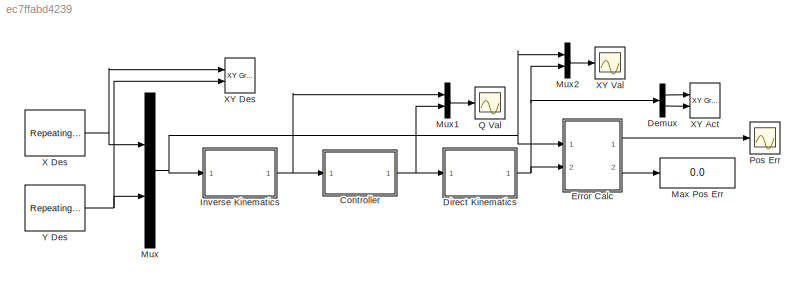
MODEL slx_ec7ffabd4239
KIND model
CONFIG AbsTol = auto
CONFIG EnableMultiTasking = on
CONFIG FixedStep = auto
CONFIG InitFcn = CONSTANTS\nDEFAULT\nModel
CONFIG MaxStep = auto
CONFIG MinStep = auto
CONFIG PreLoadFcn = CONSTANTS\nDEFAULT\nModel
CONFIG RelTol = 1e-3
CONFIG SampleTimeConstraint = Unconstrained
CONFIG Solver = ode45
CONFIG SolverName = ode45
CONFIG StartTime = 0.0
CONFIG StopTime = .5
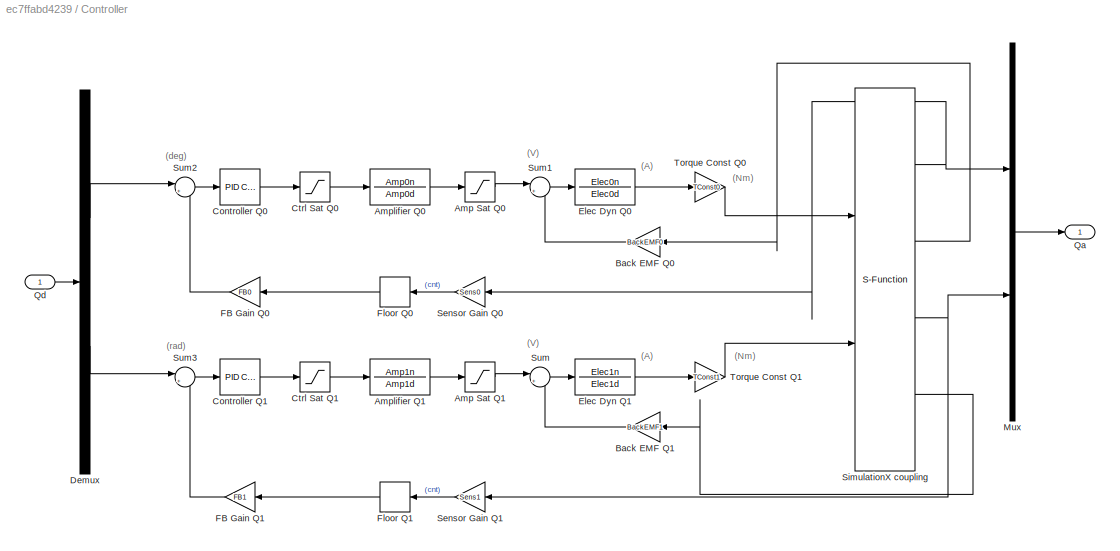
BLOCK [SubSystem] Controller
  Ports = [1, 1]
  RequestExecContextInheritance = off
BLOCK [Saturate] Controller/Amp Sat Q0
  InputPortMap = u0
  LowerLimit = -AmpSat0
  Ports = [1, 1]
  UpperLimit = AmpSat0
BLOCK [Saturate] Controller/Amp Sat Q1
  InputPortMap = u0
  LowerLimit = -AmpSat1
  Ports = [1, 1]
  UpperLimit = AmpSat1
BLOCK [TransferFcn] Controller/Amplifier Q0
  Denominator = Amp0d
  Numerator = Amp0n
BLOCK [TransferFcn] Controller/Amplifier Q1
  Denominator = Amp1d
  Numerator = Amp1n
BLOCK [Gain] Controller/Back EMF Q0
  Gain = BackEMF0
  OutDataTypeStr = Inherit: Inherit via internal rule
  ParamDataTypeStr = Inherit: Inherit via internal rule
  SaturateOnIntegerOverflow = off
BLOCK [Gain] Controller/Back EMF Q1
  Gain = BackEMF1
  OutDataTypeStr = Inherit: Inherit via internal rule
  ParamDataTypeStr = Inherit: Inherit via internal rule
  SaturateOnIntegerOverflow = off
BLOCK [Reference] Controller/Controller Q0  REF=simulink/Continuous/PID Controller
  Ports = [1, 1]
  SourceBlock = simulink/Continuous/PID Controller
  SourceProductBaseCode = SL
  SourceProductName = Simulink
  SourceType = PID 1dof
BLOCK [Reference] Controller/Controller Q1  REF=simulink/Continuous/PID Controller
  Ports = [1, 1]
  SourceBlock = simulink/Continuous/PID Controller
  SourceProductBaseCode = SL
  SourceProductName = Simulink
  SourceType = PID 1dof
BLOCK [Saturate] Controller/Ctrl Sat Q0
  InputPortMap = u0
  LowerLimit = -CtlSat0
  Ports = [1, 1]
  UpperLimit = CtlSat0
BLOCK [Saturate] Controller/Ctrl Sat Q1
  InputPortMap = u0
  LowerLimit = -CtlSat1
  Ports = [1, 1]
  UpperLimit = CtlSat1
BLOCK [Demux] Controller/Demux
  DisplayOption = bar
  Outputs = 2
  Ports = [1, 2]
BLOCK [TransferFcn] Controller/Elec Dyn Q0
  Denominator = Elec0d
  Numerator = Elec0n
BLOCK [TransferFcn] Controller/Elec Dyn Q1
  Denominator = Elec1d
  Numerator = Elec1n
BLOCK [Gain] Controller/FB Gain Q0
  Gain = FB0
  OutDataTypeStr = Inherit: Inherit via internal rule
  ParamDataTypeStr = Inherit: Inherit via internal rule
  SaturateOnIntegerOverflow = off
BLOCK [Gain] Controller/FB Gain Q1
  Gain = FB1
  OutDataTypeStr = Inherit: Inherit via internal rule
  ParamDataTypeStr = Inherit: Inherit via internal rule
  SaturateOnIntegerOverflow = off
BLOCK [Rounding] Controller/Floor Q0
BLOCK [Rounding] Controller/Floor Q1
BLOCK [Mux] Controller/Mux
  DisplayOption = bar
  Inputs = 2
  Ports = [2, 1]
BLOCK [Outport] Controller/Qa
  IconDisplay = Port number
BLOCK [Inport] Controller/Qd
  IconDisplay = Port number
BLOCK [Gain] Controller/Sensor Gain Q0
  Gain = Sens0
  OutDataTypeStr = Inherit: Inherit via internal rule
  ParamDataTypeStr = Inherit: Inherit via internal rule
  SaturateOnIntegerOverflow = off
BLOCK [Gain] Controller/Sensor Gain Q1
  Gain = Sens1
  OutDataTypeStr = Inherit: Inherit via internal rule
  ParamDataTypeStr = Inherit: Inherit via internal rule
  SaturateOnIntegerOverflow = off
BLOCK [S-Function] Controller/SimulationX coupling
  EnableBusSupport = off
  FunctionName = ITIFct2
  Parameters = ip, port, ts, nIn, nOut
  Ports = [2, 4]
  SFcnIsStateOwnerBlock = off
  SFunctionDeploymentMode = off
BLOCK [Sum] Controller/Sum
  IconShape = round
  InputSameDT = off
  Inputs = |+-
  OutDataTypeStr = Inherit: Inherit via internal rule
  Ports = [2, 1]
  SaturateOnIntegerOverflow = off
BLOCK [Sum] Controller/Sum1
  IconShape = round
  InputSameDT = off
  Inputs = |+-
  OutDataTypeStr = Inherit: Inherit via internal rule
  Ports = [2, 1]
  SaturateOnIntegerOverflow = off
BLOCK [Sum] Controller/Sum2
  IconShape = round
  InputSameDT = off
  Inputs = |+-
  OutDataTypeStr = Inherit: Inherit via internal rule
  Ports = [2, 1]
  SaturateOnIntegerOverflow = off
BLOCK [Sum] Controller/Sum3
  IconShape = round
  InputSameDT = off
  Inputs = |+-
  OutDataTypeStr = Inherit: Inherit via internal rule
  Ports = [2, 1]
  SaturateOnIntegerOverflow = off
BLOCK [Gain] Controller/Torque Const Q0
  Gain = TConst0
  OutDataTypeStr = Inherit: Inherit via internal rule
  ParamDataTypeStr = Inherit: Inherit via internal rule
  SaturateOnIntegerOverflow = off
BLOCK [Gain] Controller/Torque Const Q1
  Gain = TConst1
  OutDataTypeStr = Inherit: Inherit via internal rule
  ParamDataTypeStr = Inherit: Inherit via internal rule
  SaturateOnIntegerOverflow = off
BLOCK [Demux] Demux
  DisplayOption = bar
  Outputs = 2
  Ports = [1, 2]
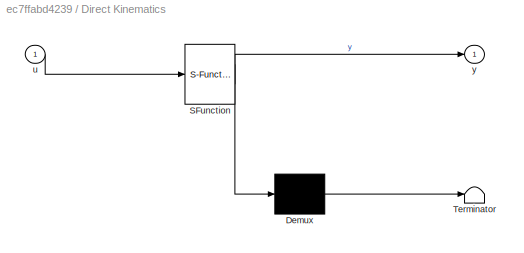
BLOCK [SubSystem] Direct Kinematics
  ErrorFcn = Stateflow.Translate.translate
  PermitHierarchicalResolution = ExplicitOnly
  Ports = [1, 1]
  RequestExecContextInheritance = off
  SFBlockType = MATLAB Function
  TreatAsAtomicUnit = on
BLOCK [Demux] Direct Kinematics/ Demux 
  Outputs = 1
  Ports = [1, 1]
BLOCK [S-Function] Direct Kinematics/ SFunction 
  EnableBusSupport = on
  FunctionName = sf_sfun
  PortCounts = [1 2]
  Ports = [1, 2]
  SFcnIsStateOwnerBlock = off
  SFunctionDeploymentMode = off
  Tag = Stateflow S-Function 1
BLOCK [Terminator] Direct Kinematics/ Terminator 
BLOCK [Inport] Direct Kinematics/u
  IconDisplay = Port number
BLOCK [Outport] Direct Kinematics/y
  IconDisplay = Port number
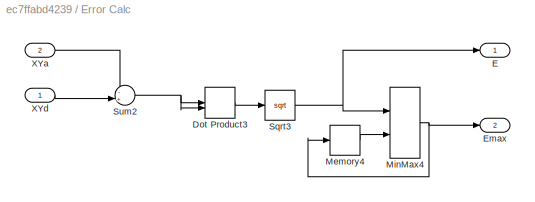
BLOCK [SubSystem] Error Calc
  Ports = [2, 2]
  RequestExecContextInheritance = off
BLOCK [DotProduct] Error Calc/Dot Product3
  OutDataTypeStr = Inherit: Inherit via internal rule
BLOCK [Outport] Error Calc/E
  IconDisplay = Port number
BLOCK [Outport] Error Calc/Emax
  IconDisplay = Port number
  Port = 2
BLOCK [Memory] Error Calc/Memory4
BLOCK [MinMax] Error Calc/MinMax4
  Function = max
  InputSameDT = off
  Inputs = 2
  Ports = [2, 1]
  SaturateOnIntegerOverflow = off
BLOCK [Sqrt] Error Calc/Sqrt3
BLOCK [Sum] Error Calc/Sum2
  IconShape = round
  InputSameDT = off
  Inputs = -+|
  OutDataTypeStr = Inherit: Inherit via internal rule
  Ports = [2, 1]
  SaturateOnIntegerOverflow = off
BLOCK [Inport] Error Calc/XYa
  IconDisplay = Port number
  Port = 2
BLOCK [Inport] Error Calc/XYd
  IconDisplay = Port number
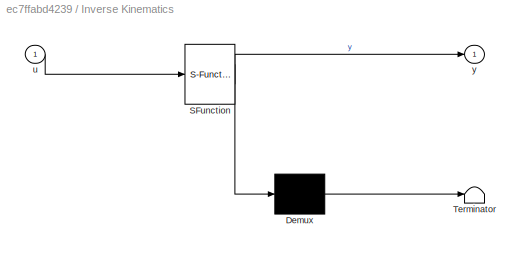
BLOCK [SubSystem] Inverse Kinematics
  ErrorFcn = Stateflow.Translate.translate
  PermitHierarchicalResolution = ExplicitOnly
  Ports = [1, 1]
  RequestExecContextInheritance = off
  SFBlockType = MATLAB Function
  TreatAsAtomicUnit = on
BLOCK [Demux] Inverse Kinematics/ Demux 
  Outputs = 1
  Ports = [1, 1]
BLOCK [S-Function] Inverse Kinematics/ SFunction 
  EnableBusSupport = on
  FunctionName = sf_sfun
  PortCounts = [1 2]
  Ports = [1, 2]
  SFcnIsStateOwnerBlock = off
  SFunctionDeploymentMode = off
  Tag = Stateflow S-Function 2
BLOCK [Terminator] Inverse Kinematics/ Terminator 
BLOCK [Inport] Inverse Kinematics/u
  IconDisplay = Port number
BLOCK [Outport] Inverse Kinematics/y
  IconDisplay = Port number
BLOCK [Display] Max Pos Err
  Decimation = 1
  Ports = [1]
BLOCK [Mux] Mux
  DisplayOption = bar
  Inputs = 2
  Ports = [2, 1]
BLOCK [Mux] Mux1
  DisplayOption = bar
  Inputs = 2
  Ports = [2, 1]
BLOCK [Mux] Mux2
  DisplayOption = bar
  Inputs = 2
  Ports = [2, 1]
BLOCK [Scope] Pos Err
  Floating = off
  NumInputPorts = 1
  Ports = [1]
  ScopeSpecificationString = Simulink.scopes.TimeScopeBlockCfg('CurrentConfiguration', extmgr.ConfigurationSet(extmgr.Configuration('Core','General UI',true),extmgr.Configuration('Core','Source UI',true),extmgr.Configuration('Sources','WiredSimulink',true,'DataLoggingVariableName','ScopeData1','DataLoggingSaveFormat','Array','DataLoggingDecimation','1','DataLoggingDecimateData',true),extmgr.Configuration('Visuals','Time Domai...<+1740ch>
BLOCK [Scope] Q Val
  Floating = off
  NumInputPorts = 1
  Ports = [1]
  ScopeSpecificationString = Simulink.scopes.TimeScopeBlockCfg('CurrentConfiguration', extmgr.ConfigurationSet(extmgr.Configuration('Core','General UI',true),extmgr.Configuration('Core','Source UI',true),extmgr.Configuration('Sources','WiredSimulink',true,'DataLoggingVariableName','ScopeData1','DataLoggingLimitDataPoints',true,'DataLoggingSaveFormat','Array','DataLoggingDecimation','1','DataLoggingDecimateData',true),extmgr.C...<+1811ch>
BLOCK [Reference] X Des  REF=simulink/Sources/Repeating
Sequence
Interpolated
  Ports = [0, 1]
  SourceBlock = simulink/Sources/Repeating\nSequence\nInterpolated
  SourceProductBaseCode = SL
  SourceProductName = Simulink
  SourceType = Repeating Sequence Interpolated
BLOCK [Reference] XY Act  REF=simulink/Sinks/XY Graph
  Ports = [2]
  SourceBlock = simulink/Sinks/XY Graph
  SourceProductBaseCode = SL
  SourceProductName = Simulink
  SourceType = XY scope.
BLOCK [Reference] XY Des  REF=simulink/Sinks/XY Graph
  Ports = [2]
  SourceBlock = simulink/Sinks/XY Graph
  SourceProductBaseCode = SL
  SourceProductName = Simulink
  SourceType = XY scope.
BLOCK [Scope] XY Val
  Floating = off
  NumInputPorts = 1
  Ports = [1]
  ScopeSpecificationString = Simulink.scopes.TimeScopeBlockCfg('CurrentConfiguration', extmgr.ConfigurationSet(extmgr.Configuration('Core','General UI',true),extmgr.Configuration('Core','Source UI',true),extmgr.Configuration('Sources','WiredSimulink',true,'DataLoggingVariableName','ScopeData1','DataLoggingLimitDataPoints',true,'DataLoggingSaveFormat','Array','DataLoggingDecimation','1','DataLoggingDecimateData',true),extmgr.C...<+1793ch>
BLOCK [Reference] Y Des  REF=simulink/Sources/Repeating
Sequence
Interpolated
  Ports = [0, 1]
  SourceBlock = simulink/Sources/Repeating\nSequence\nInterpolated
  SourceProductBaseCode = SL
  SourceProductName = Simulink
  SourceType = Repeating Sequence Interpolated
ANNOTATION Controller: (A)
ANNOTATION Controller: (Nm)
ANNOTATION Controller: (V)
ANNOTATION Controller: (deg)
ANNOTATION Controller: (rad)
LINE Controller/Amp Sat Q0:1 -> Controller/Sum1:1
LINE Controller/Amp Sat Q1:1 -> Controller/Sum:1
LINE Controller/Amplifier Q0:1 -> Controller/Amp Sat Q0:1
LINE Controller/Amplifier Q1:1 -> Controller/Amp Sat Q1:1
LINE Controller/Back EMF Q0:1 -> Controller/Sum1:2
LINE Controller/Back EMF Q1:1 -> Controller/Sum:2
LINE Controller/Controller Q0:1 -> Controller/Ctrl Sat Q0:1
LINE Controller/Controller Q1:1 -> Controller/Ctrl Sat Q1:1
LINE Controller/Ctrl Sat Q0:1 -> Controller/Amplifier Q0:1
LINE Controller/Ctrl Sat Q1:1 -> Controller/Amplifier Q1:1
LINE Controller/Demux:1 -> Controller/Sum2:1
LINE Controller/Demux:2 -> Controller/Sum3:1
LINE Controller/Elec Dyn Q0:1 -> Controller/Torque Const Q0:1
LINE Controller/Elec Dyn Q1:1 -> Controller/Torque Const Q1:1
LINE Controller/FB Gain Q0:1 -> Controller/Sum2:2
LINE Controller/FB Gain Q1:1 -> Controller/Sum3:2
LINE Controller/Floor Q0:1 -> Controller/FB Gain Q0:1
LINE Controller/Floor Q1:1 -> Controller/FB Gain Q1:1
LINE Controller/Mux:1 -> Controller/Qa:1
LINE Controller/Qd:1 -> Controller/Demux:1
LINE Controller/Sensor Gain Q0:1 -> Controller/Floor Q0:1
LINE Controller/Sensor Gain Q1:1 -> Controller/Floor Q1:1
NET Controller/SimulationX coupling:1 -> Controller/Mux:1, Controller/Sensor Gain Q0:1
LINE Controller/SimulationX coupling:2 -> Controller/Back EMF Q0:1
NET Controller/SimulationX coupling:3 -> Controller/Mux:2, Controller/Sensor Gain Q1:1
LINE Controller/SimulationX coupling:4 -> Controller/Back EMF Q1:1
LINE Controller/Sum1:1 -> Controller/Elec Dyn Q0:1
LINE Controller/Sum2:1 -> Controller/Controller Q0:1
LINE Controller/Sum3:1 -> Controller/Controller Q1:1
LINE Controller/Sum:1 -> Controller/Elec Dyn Q1:1
LINE Controller/Torque Const Q0:1 -> Controller/SimulationX coupling:1
LINE Controller/Torque Const Q1:1 -> Controller/SimulationX coupling:2
NET Controller:1 -> Direct Kinematics:1, Mux1:2
LINE Demux:1 -> XY Act:1
LINE Demux:2 -> XY Act:2
NET Direct Kinematics:1 -> Demux:1, Error Calc:2, Mux2:2
LINE Error Calc/Dot Product3:1 -> Error Calc/Sqrt3:1
LINE Error Calc/Memory4:1 -> Error Calc/MinMax4:2
NET Error Calc/MinMax4:1 -> Error Calc/Emax:1, Error Calc/Memory4:1
NET Error Calc/Sqrt3:1 -> Error Calc/E:1, Error Calc/MinMax4:1
NET Error Calc/Sum2:1 -> Error Calc/Dot Product3:1, Error Calc/Dot Product3:2
LINE Error Calc/XYa:1 -> Error Calc/Sum2:1
LINE Error Calc/XYd:1 -> Error Calc/Sum2:2
LINE Error Calc:1 -> Pos Err:1
LINE Error Calc:2 -> Max Pos Err:1
NET Inverse Kinematics:1 -> Controller:1, Mux1:1
LINE Mux1:1 -> Q Val:1
LINE Mux2:1 -> XY Val:1
NET Mux:1 -> Error Calc:1, Inverse Kinematics:1, Mux2:1
NET X Des:1 -> Mux:1, XY Des:1
NET Y Des:1 -> Mux:2, XY Des:2
note: NET lines group one-source signal fan-out (src -> all destinations, sorted); 1:1 wires keep LINE
CHART Direct Kinematics states=1 transitions=1
  STATE_LABEL 'eML_blk_kernel()'
  STATE_LABEL 'SCRIPT:\nfunction y = DirKin(u)\n\n% This assumes first param is theta_0 and second is theta_1\n% COnvert back from gear ratio\ntheta_0 = u(1) / (-3);\ntheta_1 = u(2) / (-3);\n\nxpos = 100 * (cosd(theta_0) + cosd(theta_1));\nypos = 100 * (sind(theta_0) + sind(theta_1));\n\n% Return Default Result\ny = [ xpos; ypos ]; '
CHART Inverse Kinematics states=1 transitions=1
  STATE_LABEL 'eML_blk_kernel()'
  STATE_LABEL 'SCRIPT:\nfunction y = InvKin(u)\n\n% Convert to m from mm\nx0 = u(1);\ny0 = u(2);\n\n% Compute internal max length\nr = sqrt(x0^2 + y0^2);\nL = 100;\n\n% Compute intermediate angles of isosceles triangle approximation\nphi_1 = acos( (r^2) / (2*L*r) );\nphi_2 = angle((x0 + y0*i));\nphi_3 = acos( (2*L^2 - r^2) / (2*L^2) );\n\n% Compute final angle of joints\ntheta_0 = phi_1 + phi_2;\ntheta_2 = pi - phi_3;\ntheta_1 = t...<+146ch>'
